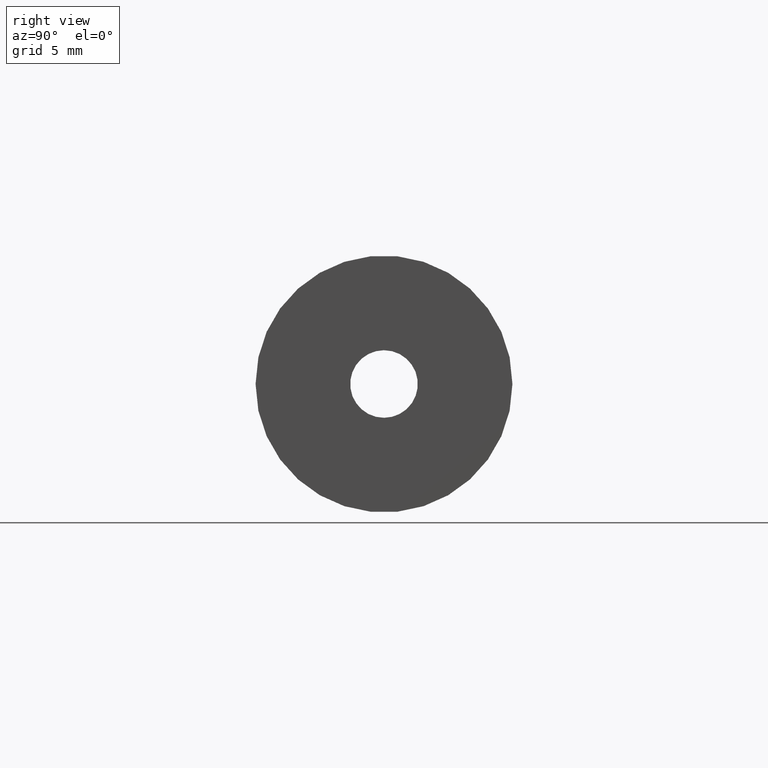
[diagram: clean part render]
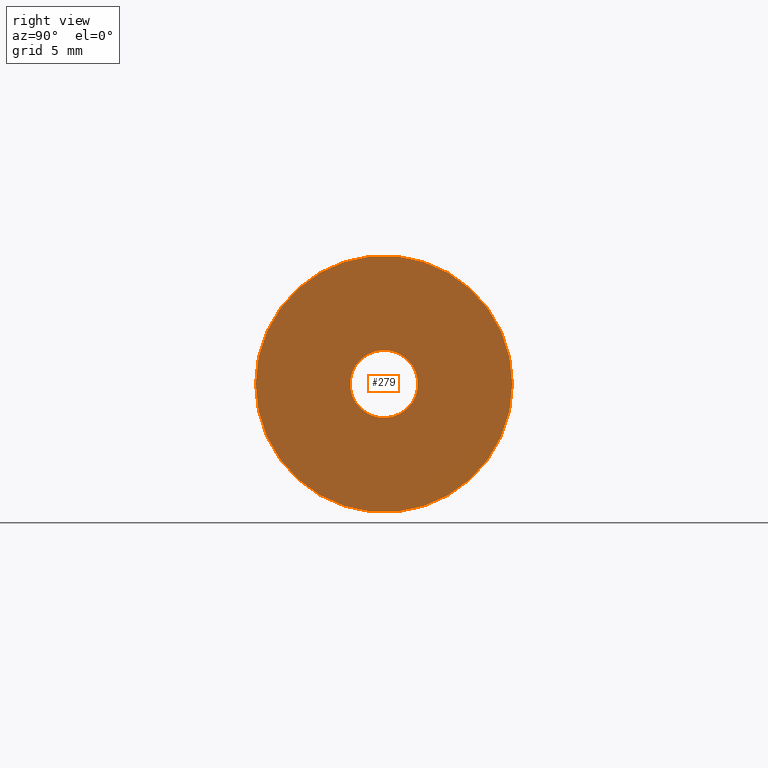
[diagram: same view with one face highlighted and labeled with its STEP entity id]
A machine part, right view. The second image highlights one B-rep face of the part: STEP entity #279.
In plain terms, the highlighted planar face has unit normal (1, 0, 0).
Its self-contained STEP definition (entity closure, byte-faithful):
#92=FACE_BOUND('',#127,.T.);
#96=PLANE('',#328);
#111=FACE_OUTER_BOUND('',#126,.T.);
#126=EDGE_LOOP('',(#249));
#127=EDGE_LOOP('',(#250));
#154=CIRCLE('',#308,2.5);
#165=CIRCLE('',#327,9.5);
#173=VERTEX_POINT('',#459);
#184=VERTEX_POINT('',#496);
#188=EDGE_CURVE('',#173,#173,#154,.T.);
#206=EDGE_CURVE('',#184,#184,#165,.T.);
#249=ORIENTED_EDGE('',*,*,#206,.T.);
#250=ORIENTED_EDGE('',*,*,#188,.T.);
#279=ADVANCED_FACE('',(#111,#92),#96,.T.);
#308=AXIS2_PLACEMENT_3D('',#460,#357,#358);
#327=AXIS2_PLACEMENT_3D('',#497,#402,#403);
#328=AXIS2_PLACEMENT_3D('',#499,#405,#406);
#357=DIRECTION('center_axis',(-1.,0.,0.));
#358=DIRECTION('ref_axis',(0.,0.,-1.));
#402=DIRECTION('center_axis',(1.,0.,0.));
#403=DIRECTION('ref_axis',(0.,0.,-1.));
#405=DIRECTION('center_axis',(1.,0.,0.));
#406=DIRECTION('ref_axis',(0.,0.,-1.));
#459=CARTESIAN_POINT('',(1.77635683940025E-14,-3.06161699786838E-16,2.5));
#460=CARTESIAN_POINT('Origin',(1.77635683940025E-14,0.,0.));
#496=CARTESIAN_POINT('',(7.49400541621981E-15,-9.5,-1.16341445918999E-15));
#497=CARTESIAN_POINT('Origin',(7.49400541621981E-15,0.,0.));
#499=CARTESIAN_POINT('Origin',(1.33226762955019E-14,0.,0.));